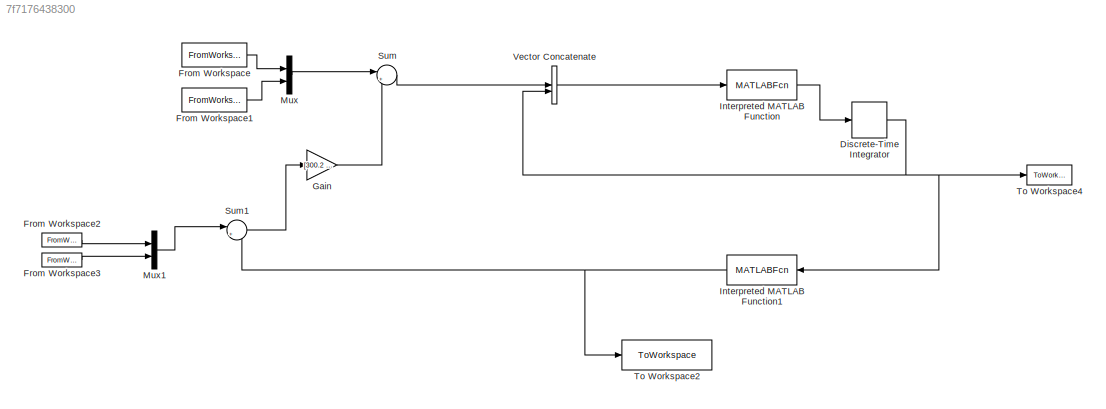
MODEL slx_7f7176438300
KIND model
CONFIG AbsTol = auto
CONFIG EnableMultiTasking = off
CONFIG FixedStep = 0.001
CONFIG MaxStep = auto
CONFIG MinStep = auto
CONFIG RelTol = 1e-3
CONFIG SampleTimeConstraint = Unconstrained
CONFIG SolverName = ode1
CONFIG StartTime = 0.0
CONFIG StopTime = 4
BLOCK [DiscreteIntegrator] Discrete-Time Integrator
  ICPrevOutput = DiscIntNeverNeededParam
  ICPrevScaledInput = DiscIntNeverNeededParam
  InitialCondition = q0
  InitialConditionSetting = Auto
  SampleTime = Tc
BLOCK [FromWorkspace] From Workspace
  SampleTime = Tc
  VariableName = [t,pd_dot]
BLOCK [FromWorkspace] From Workspace1
  VariableName = [t,theta_d_dot]
BLOCK [FromWorkspace] From Workspace2
  VariableName = [t,pd]
BLOCK [FromWorkspace] From Workspace3
  VariableName = [t,theta_d]
BLOCK [Gain] Gain
  Gain = [300.2 0 0 0;0 300.20 0 0;0 0 301.1090 0; 0 0 0 100.0]
  Multiplication = Matrix(K*u)
BLOCK [MATLABFcn] Interpreted MATLAB Function
  MATLABFcn = jacobian_transpose
  OutputDimensions = 4
BLOCK [MATLABFcn] Interpreted MATLAB Function1
  MATLABFcn = direct_kin
  NameLocation = top
  OutputDimensions = 4
BLOCK [Mux] Mux
  DisplayOption = bar
  Inputs = 2
BLOCK [Mux] Mux1
  DisplayOption = bar
  Inputs = 2
BLOCK [Sum] Sum
  Inputs = |++
BLOCK [Sum] Sum1
  Inputs = |+-
BLOCK [ToWorkspace] To Workspace2
  FixptAsFi = on
  MaxDataPoints = inf
  SampleTime = -1
  Save2DSignal = 2-D array (concatenate along first dimension)
  VariableName = Position_Orientation
BLOCK [ToWorkspace] To Workspace4
  FixptAsFi = on
  MaxDataPoints = inf
  SampleTime = -1
  VariableName = Joints
BLOCK [Concatenate] Vector Concatenate
NET Discrete-Time Integrator:1 -> Interpreted MATLAB Function1:1, To Workspace4:1, Vector Concatenate:2
LINE From Workspace1:1 -> Mux:2
LINE From Workspace2:1 -> Mux1:1
LINE From Workspace3:1 -> Mux1:2
LINE From Workspace:1 -> Mux:1
LINE Gain:1 -> Sum:2
NET Interpreted MATLAB Function1:1 -> Sum1:2, To Workspace2:1
LINE Interpreted MATLAB Function:1 -> Discrete-Time Integrator:1
LINE Mux1:1 -> Sum1:1
LINE Mux:1 -> Sum:1
LINE Sum1:1 -> Gain:1
LINE Sum:1 -> Vector Concatenate:1
LINE Vector Concatenate:1 -> Interpreted MATLAB Function:1
note: NET lines group one-source signal fan-out (src -> all destinations, sorted); 1:1 wires keep LINE
